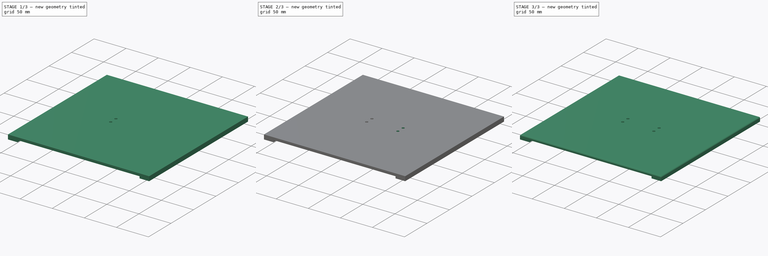
[diagram: build sequence overview — one tinted view per stage of 3, left to right]
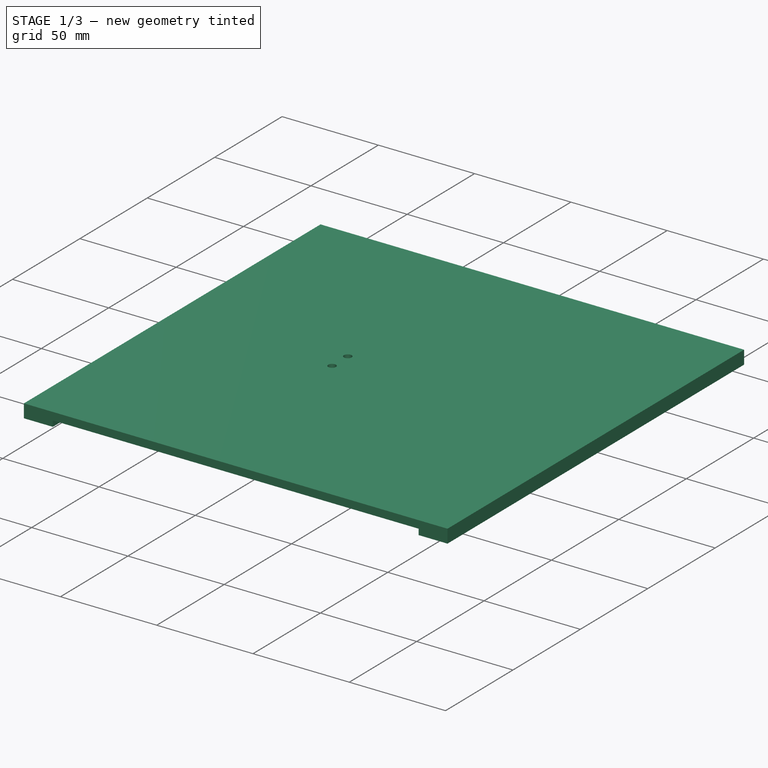
[diagram: stage 1 of 3 — iso view after this stage's code; geometry added in this stage tinted green]
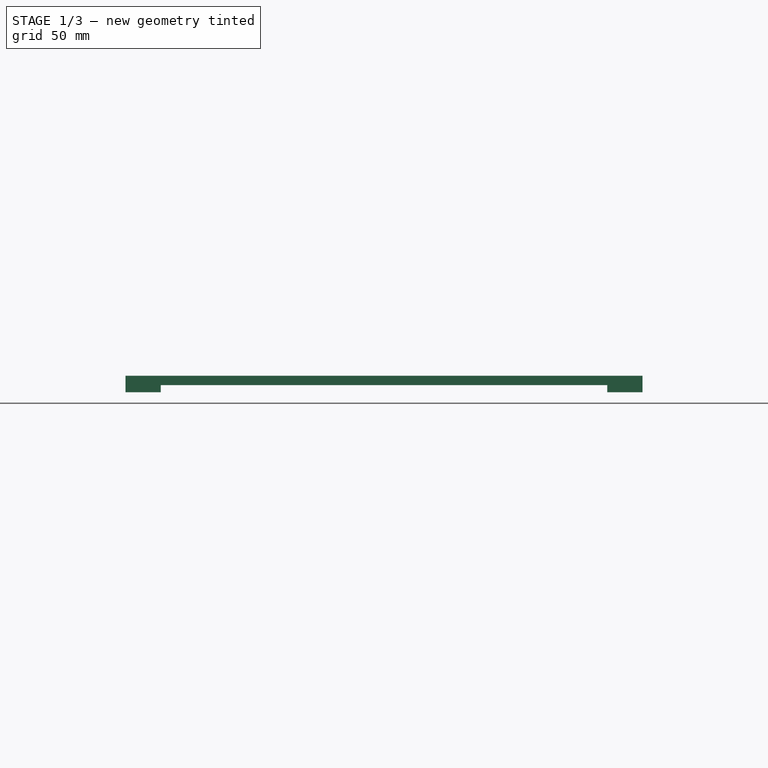
[diagram: stage 1 of 3 — front view after this stage's code; geometry added in this stage tinted green]
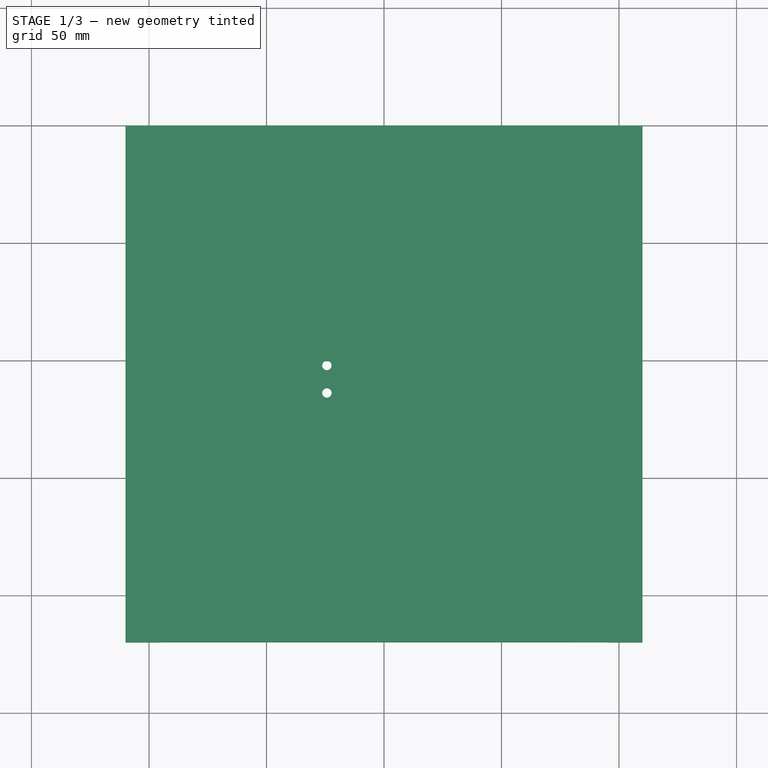
[diagram: stage 1 of 3 — top view after this stage's code; geometry added in this stage tinted green]
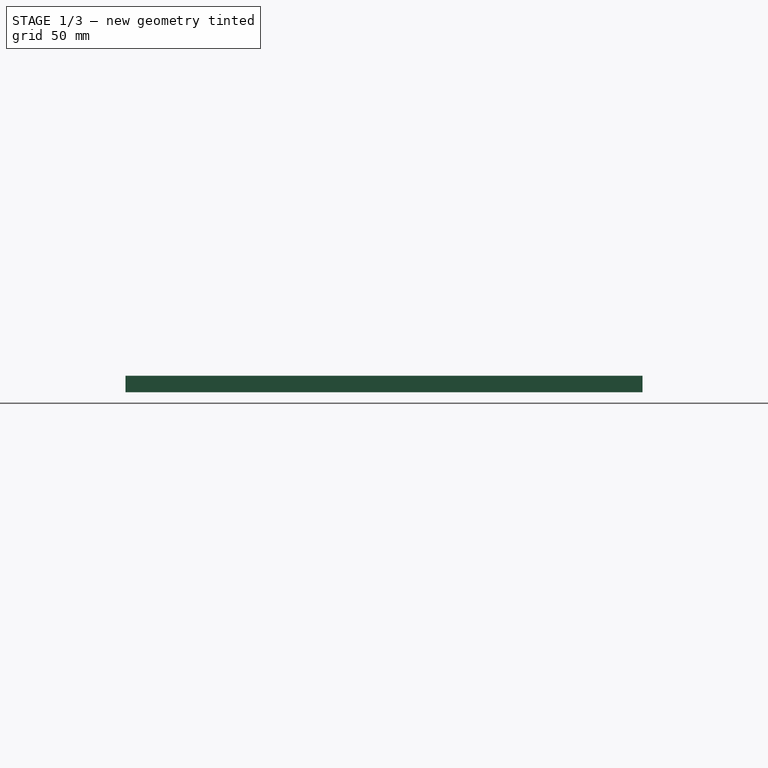
[diagram: stage 1 of 3 — right view after this stage's code; geometry added in this stage tinted green]
FCSTD DOCUMENT  (FreeCAD 0.20R29410 (Git))
Label: Robo_arm
License: All rights reserved
LicenseURL: http://en.wikipedia.org/wiki/All_rights_reserved
objects: Sketcher::SketchObject×3, PartDesign::Fillet×2, PartDesign::Pad×1, PartDesign::Plane×1, PartDesign::Pocket×1, PartDesign::Mirrored×1, PartDesign::Body×1
note: 14 computed .brp shape members not serialized (recipe doc carries the construction recipe); baked Part::Feature solids carry a one-line shape summary decoded from their .brp

FEATURE [Sketcher::SketchObject] Sketch
  FullyConstrained = false
  MapMode = 5
  Placement = pos=(0,0,0) rot=(1,0,0;1.5708rad)
  Support = -> [XZ_Plane]
  sketch-geometry (8):
    g0: LineSegment StartX=-95 StartY=0.548531 StartZ=0 EndX=-95 EndY=3.54853 EndZ=0
    g1: LineSegment StartX=-95 StartY=3.54853 StartZ=0 EndX=95 EndY=3.54853 EndZ=0
    g2: LineSegment StartX=95 StartY=3.54853 StartZ=0 EndX=95 EndY=0.548531 EndZ=0
    g3: LineSegment StartX=95 StartY=0.548531 StartZ=0 EndX=110 EndY=0.548531 EndZ=0
    g4: LineSegment StartX=110 StartY=0.548531 StartZ=0 EndX=110 EndY=7.54853 EndZ=0
    g5: LineSegment StartX=110 StartY=7.54853 StartZ=0 EndX=-110 EndY=7.54853 EndZ=0
    g6: LineSegment StartX=-110 StartY=7.54853 StartZ=0 EndX=-110 EndY=0.548531 EndZ=0
    g7: LineSegment StartX=-110 StartY=0.548531 StartZ=0 EndX=-95 EndY=0.548531 EndZ=0
  constraints (21):
    c: Vertical(g0)
    c: Coincident(g0,g1)
    c: Coincident(g1,g2)
    c: Coincident(g2,g3)
    c: Coincident(g3,g4)
    c: Vertical(g4)
    c: Coincident(g4,g5)
    c: Coincident(g5,g6)
    c: Vertical(g6)
    c: Coincident(g6,g7)
    c: Coincident(g7,g0)
    c: Horizontal(g7)
    c: Equal(g7,g3)
    c: Equal(g6,g4)
    c: Horizontal(g3)
    c: Symmetric(g1,g0,g-2)
    c: Symmetric(g4,g5,g-2)
    c: Distance(g2) = 3
    c: Distance(g3) = 15
    c: Distance(g5) = 220
    c: Distance(g1,g5) = 4
FEATURE [PartDesign::Pad] Pad
  Direction = (0,-1,-2e-16)
  Length = 220
  Length2 = 10
  Placement = pos=(0,0,0) rot=(1,0,0;1.5708rad)
  Profile = -> Sketch
  ReferenceAxis = -> Sketch [N_Axis]
  Type = 0
FEATURE [Sketcher::SketchObject] Sketch001
  FullyConstrained = true
  MapMode = 5
  Support = -> [XY_Plane]
FEATURE [PartDesign::Plane] DatumPlane
  Length = 60
  MapMode = 3
  Placement = pos=(0,0,6) rot=(0,0,1;0rad)
  ResizeMode = 0
  Width = 60
FEATURE [Sketcher::SketchObject] Sketch002
  FullyConstrained = true
  MapMode = 5
  Placement = pos=(0,0,6) rot=(0,0,1;0rad)
  Support = -> [DatumPlane]
  sketch-geometry (2):
    g0: Circle CenterX=-24.3 CenterY=-113.85 CenterZ=0 NormalX=0 NormalY=0 NormalZ=1 AngleXU=0 Radius=2
    g1: Circle CenterX=-24.3 CenterY=-102.15 CenterZ=0 NormalX=0 NormalY=0 NormalZ=1 AngleXU=0 Radius=2
  constraints (6):
    c: Equal(g1,g0)
    c: Diameter(g1) = 4
    c: Distance(g0,g1) = 11.7
    c: DistanceX(g-2,g1) = -24.3
    c: DistanceX(g-2,g0) = -24.3
    c: DistanceY(g-1,g1) = -102.15
FEATURE [PartDesign::Pocket] Pocket
  BaseFeature = -> Pad
  Direction = (0,0,-1)
  Length = 11
  Length2 = 5
  Midplane = true
  Placement = pos=(0,0,0) rot=(1,0,0;1.5708rad)
  Profile = -> Sketch002
  ReferenceAxis = -> Sketch002 [N_Axis]
  Type = 0
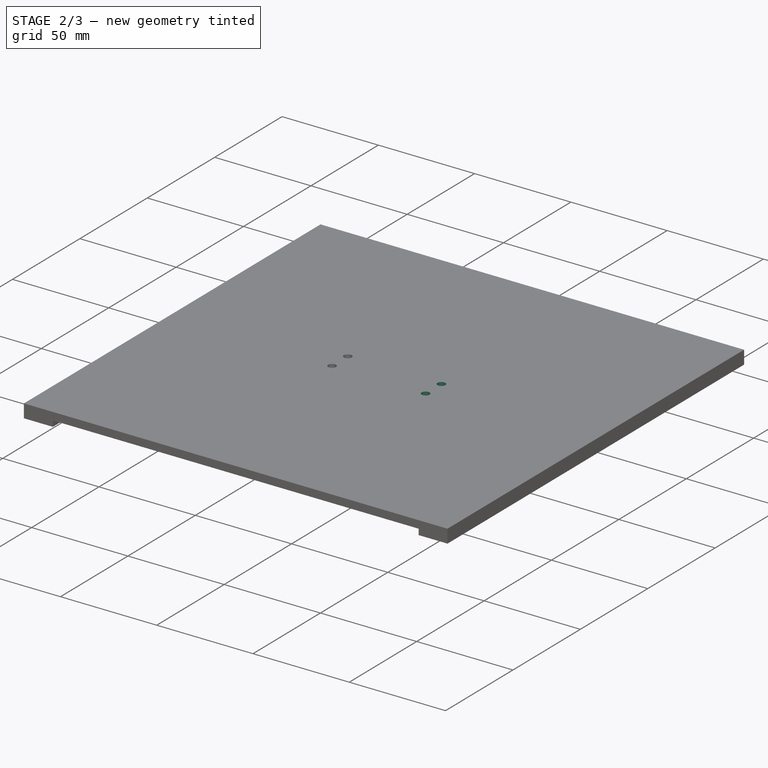
[diagram: stage 2 of 3 — iso view after this stage's code; geometry added in this stage tinted green]
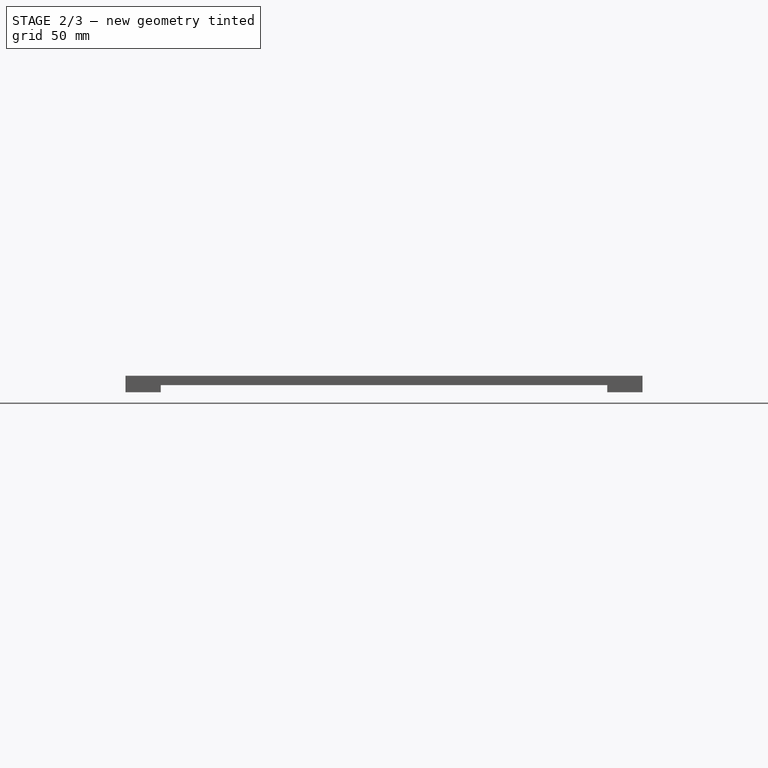
[diagram: stage 2 of 3 — front view after this stage's code; geometry added in this stage tinted green]
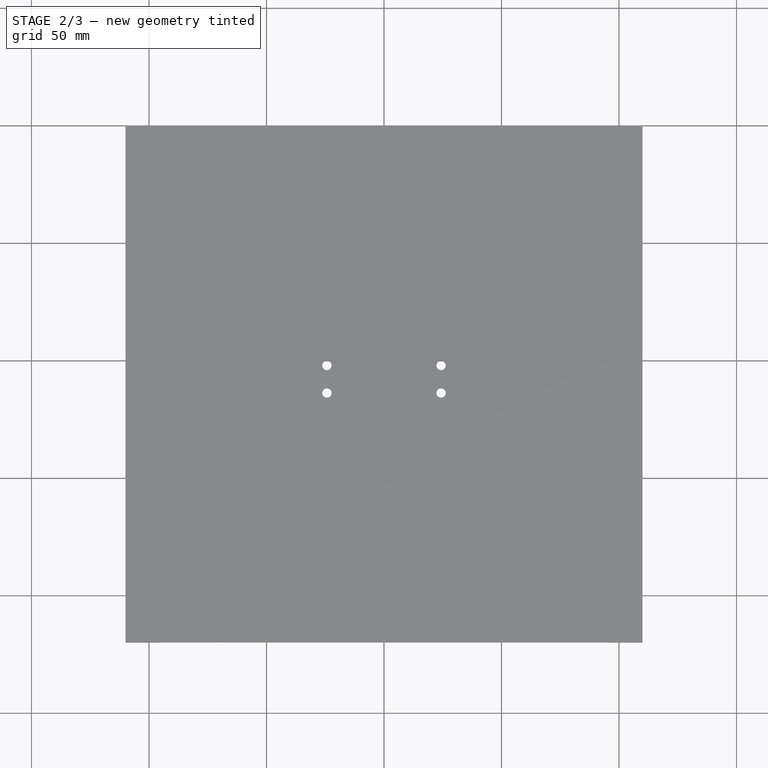
[diagram: stage 2 of 3 — top view after this stage's code; geometry added in this stage tinted green]
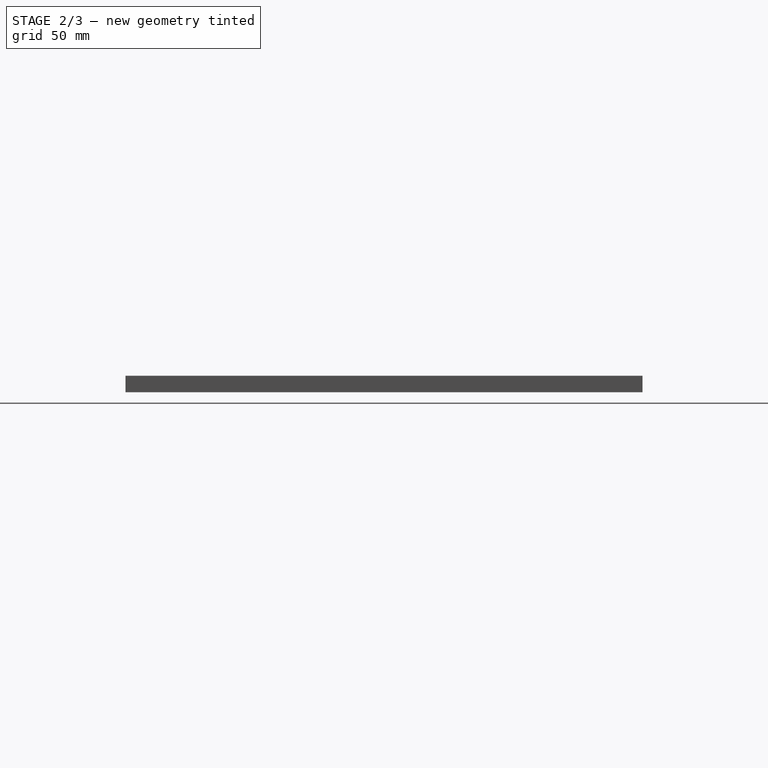
[diagram: stage 2 of 3 — right view after this stage's code; geometry added in this stage tinted green]
FEATURE [PartDesign::Mirrored] Mirrored
  BaseFeature = -> Pocket
  MirrorPlane = -> Sketch002 [V_Axis]
  Originals = -> [Pocket]
  Placement = pos=(0,0,0) rot=(1,0,0;1.5708rad)
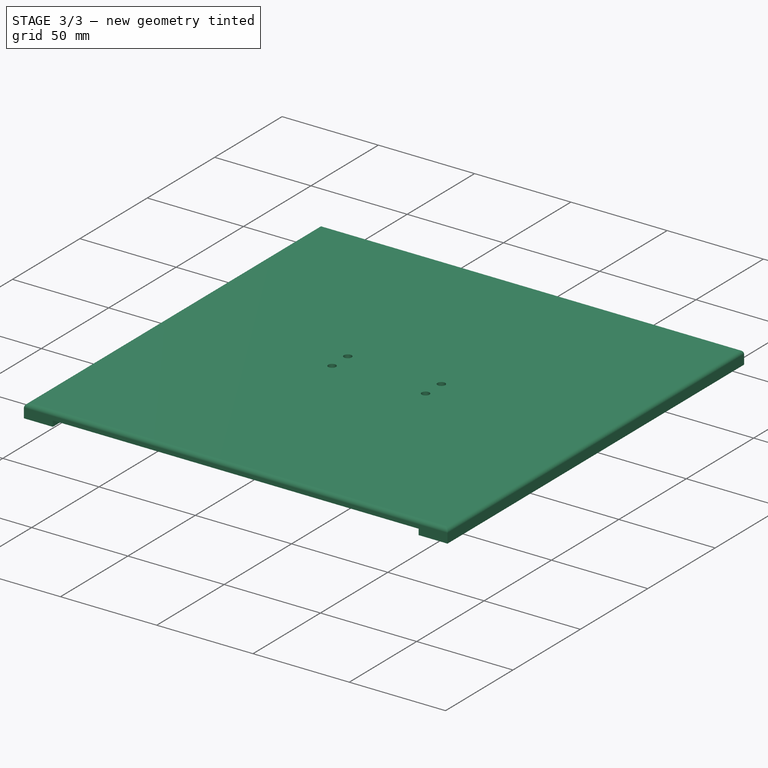
[diagram: stage 3 of 3 — iso view after this stage's code; geometry added in this stage tinted green]
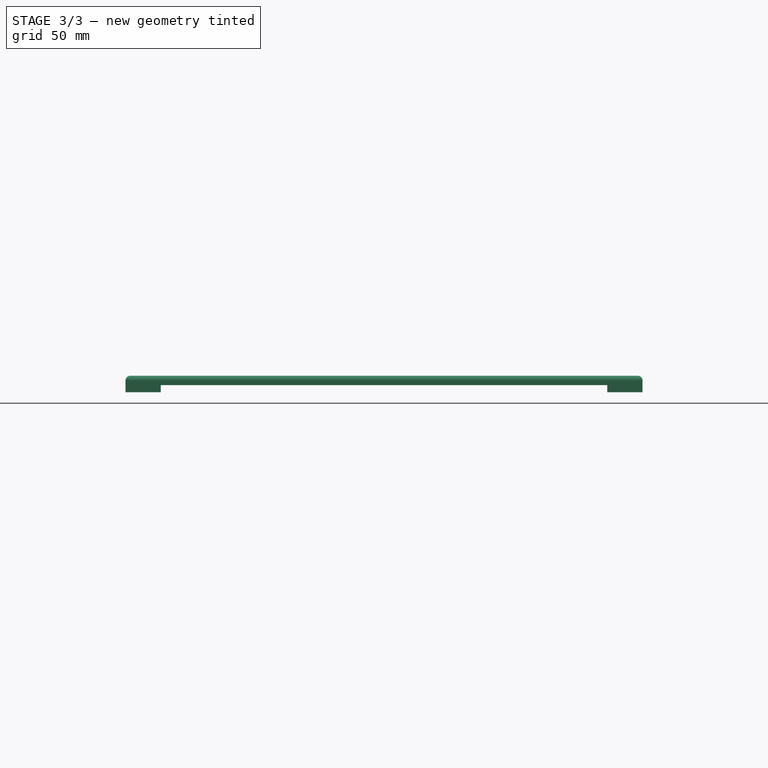
[diagram: stage 3 of 3 — front view after this stage's code; geometry added in this stage tinted green]
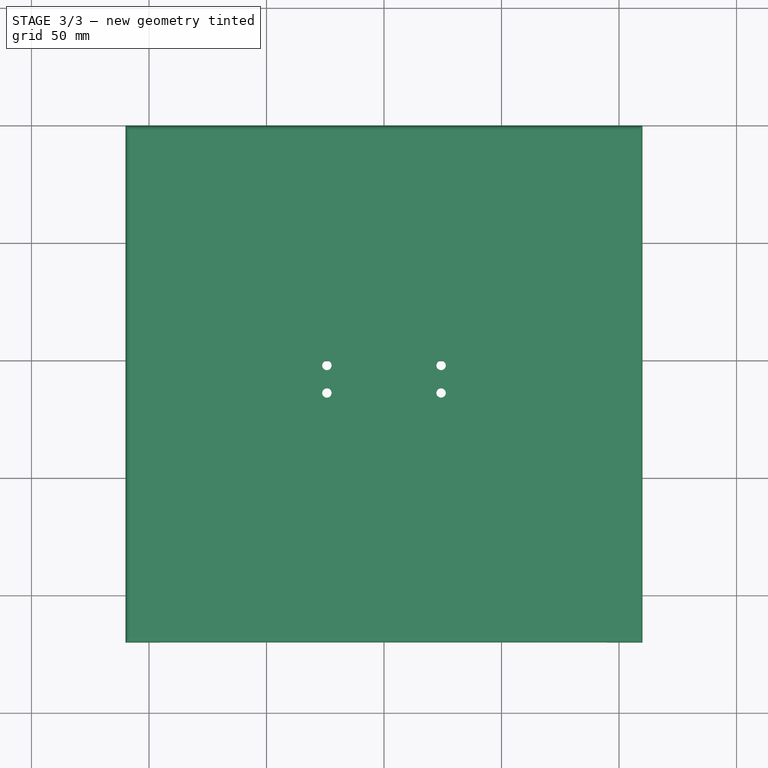
[diagram: stage 3 of 3 — top view after this stage's code; geometry added in this stage tinted green]
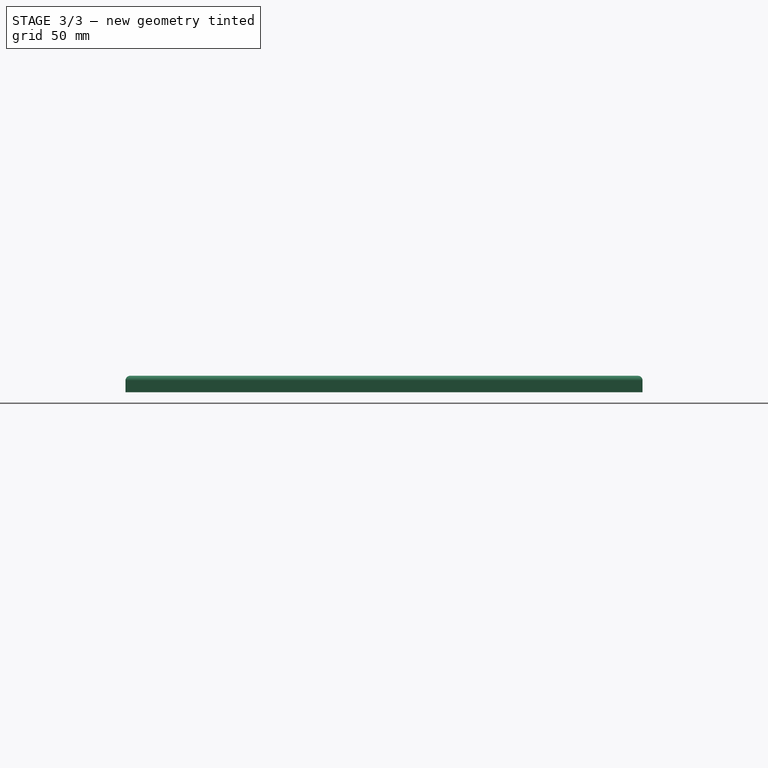
[diagram: stage 3 of 3 — right view after this stage's code; geometry added in this stage tinted green]
FEATURE [PartDesign::Fillet] Fillet
  Base = -> Mirrored [Edge18,Edge25,Edge23,Edge36]
  BaseFeature = -> Mirrored
  Placement = pos=(0,0,0) rot=(1,0,0;1.5708rad)
  Radius = 2
  SupportTransform = false
  UseAllEdges = false
FEATURE [PartDesign::Fillet] Fillet001
  Base = -> Fillet [Edge26,Edge28,Edge27,Edge29]
  BaseFeature = -> Fillet
  Placement = pos=(0,0,0) rot=(1,0,0;1.5708rad)
  Radius = 1
  SupportTransform = false
  UseAllEdges = false
FEATURE [PartDesign::Body] Body
  Group = -> [Sketch,Pad,Sketch001,DatumPlane,Sketch002,Pocket,Mirrored,Fillet,Fillet001]
  Origin = -> Origin
  Tip = -> Fillet001
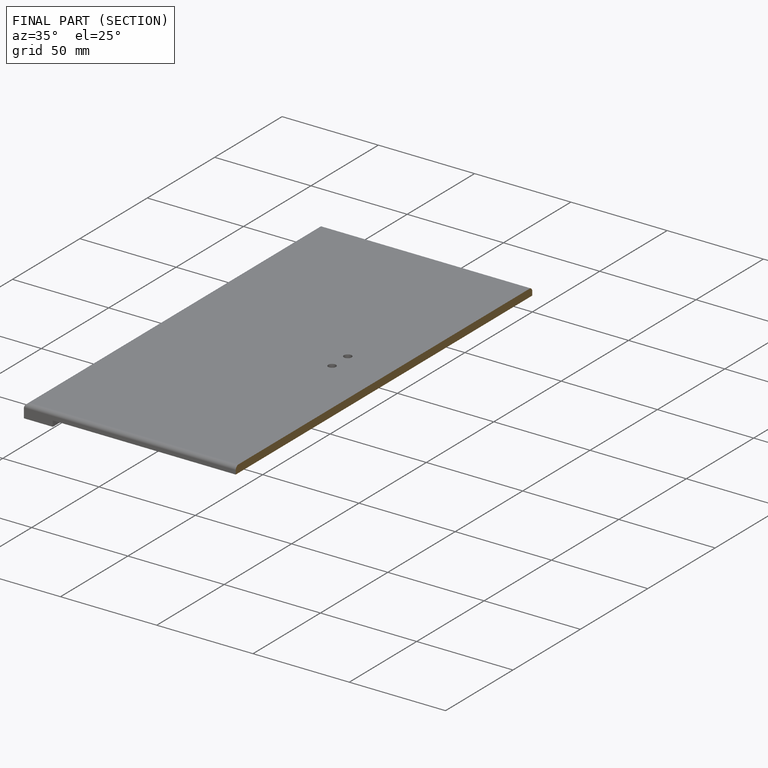
[diagram: finished part — half-section view (interior)]
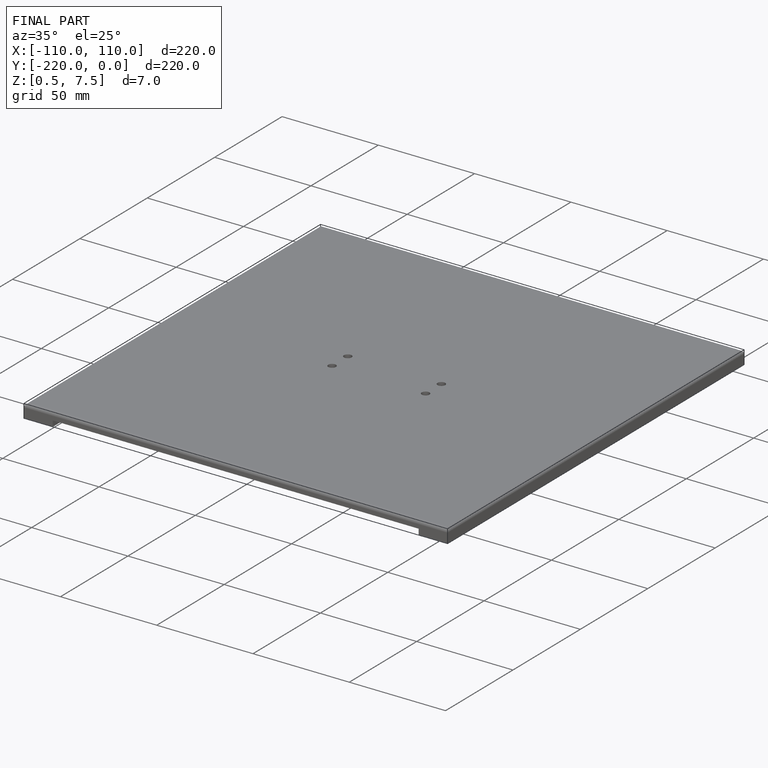
[diagram: finished part — iso view with bounding-box wireframe]
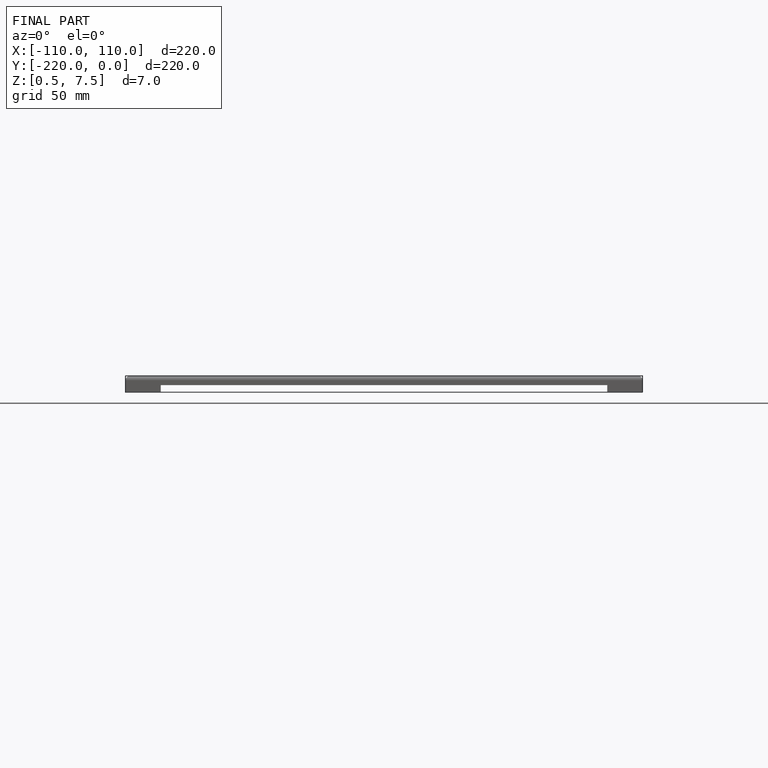
[diagram: finished part — front view with bounding-box wireframe]
